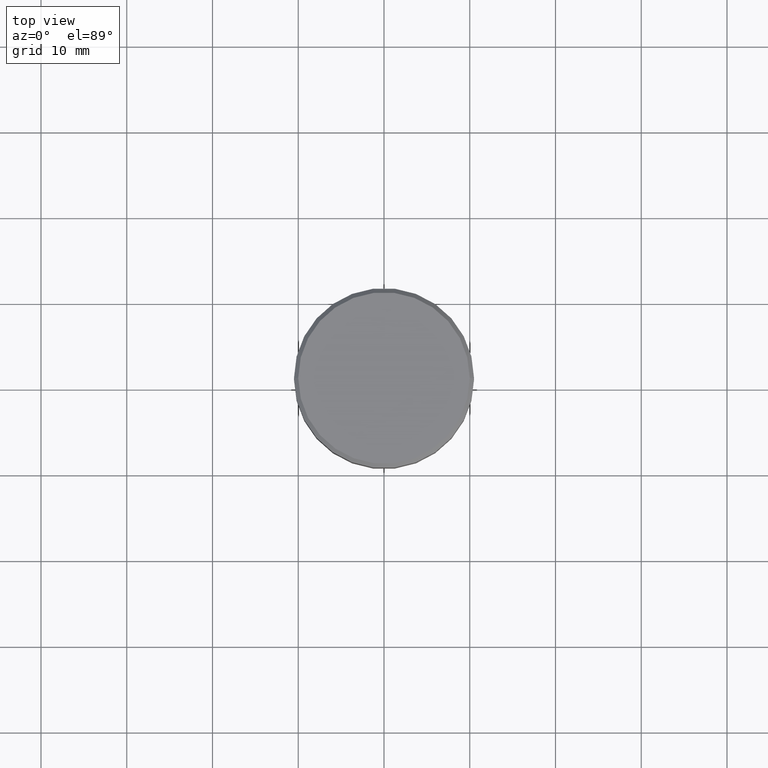
[diagram: clean part render]
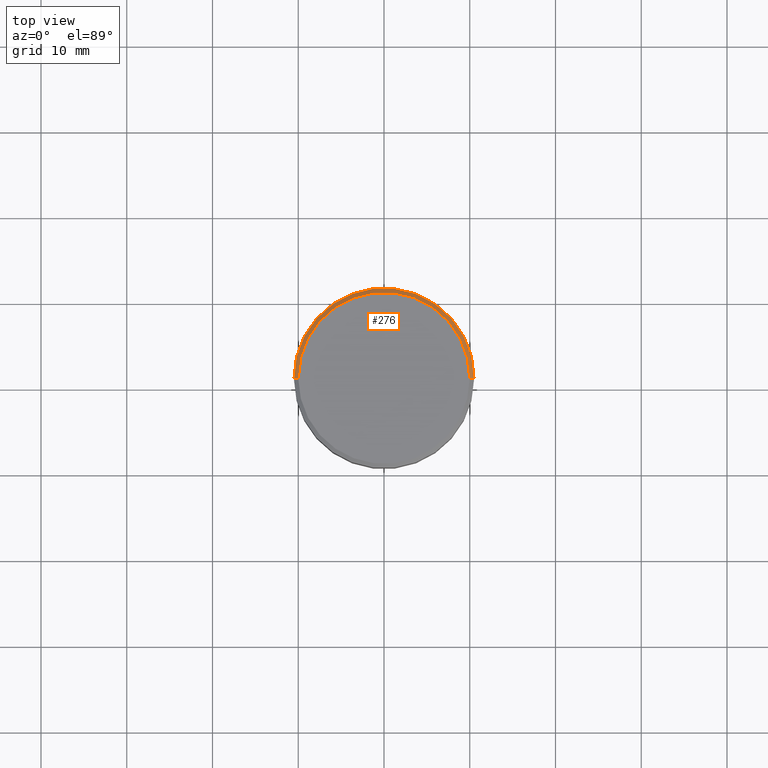
[diagram: same view with one face highlighted and labeled with its STEP entity id]
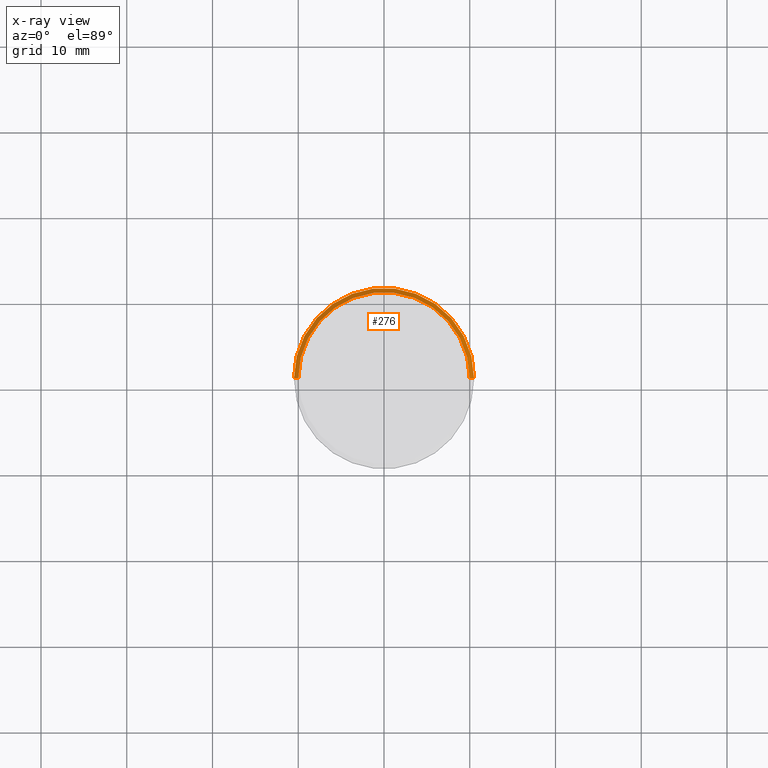
[diagram: x-ray of the same camera — body ghosted, the highlighted face saturated]
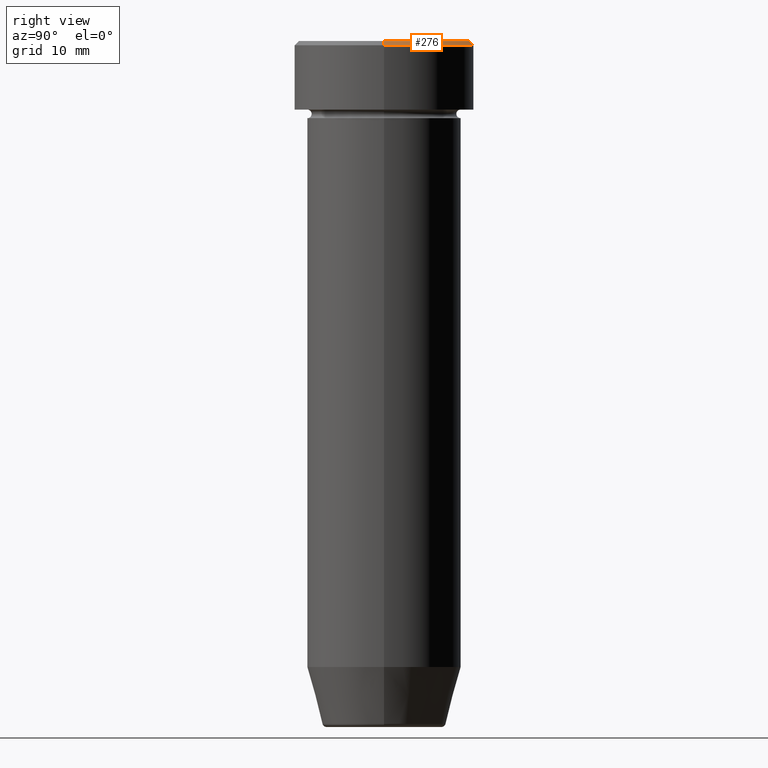
[diagram: same view with one face highlighted and labeled with its STEP entity id]
A machine part, top view. The second image highlights one B-rep face of the part: STEP entity #276.
The next image is the same camera in x-ray: the body ghosted, the highlighted face saturated — about 0% of this face is hidden behind the body in this view.
A second angle (right view) of the same face is appended — the face is thin or edge-on in the first view.
In plain terms, the highlighted conical surface has half-angle 45 deg.
Its self-contained STEP definition (entity closure, byte-faithful):
#11 = FACE_OUTER_BOUND ( 'NONE', #300, .T. ) ;
#14 = VECTOR ( 'NONE', #302, 1000.000000000000000 ) ;
#39 = DIRECTION ( 'NONE',  ( 0.7071067811865450192, 8.659560562354902043E-17, -0.7071067811865500152 ) ) ;
#44 = VERTEX_POINT ( 'NONE', #348 ) ;
#84 = DIRECTION ( 'NONE',  ( 1.000000000000000000, 0.000000000000000000, 0.000000000000000000 ) ) ;
#121 = DIRECTION ( 'NONE',  ( 0.000000000000000000, 0.000000000000000000, -1.000000000000000000 ) ) ;
#168 = EDGE_CURVE ( 'NONE', #373, #236, #509, .T. ) ;
#223 = ORIENTED_EDGE ( 'NONE', *, *, #527, .T. ) ;
#235 = DIRECTION ( 'NONE',  ( 0.000000000000000000, 0.000000000000000000, -1.000000000000000000 ) ) ;
#236 = VERTEX_POINT ( 'NONE', #241 ) ;
#241 = CARTESIAN_POINT ( 'NONE',  ( 10.50000000000000000, 0.000000000000000000, -0.5000000000000023315 ) ) ;
#242 = CARTESIAN_POINT ( 'NONE',  ( 0.000000000000000000, 0.000000000000000000, 0.000000000000000000 ) ) ;
#254 = DIRECTION ( 'NONE',  ( -1.000000000000000000, 0.000000000000000000, 0.000000000000000000 ) ) ;
#260 = CIRCLE ( 'NONE', #329, 10.00000000000000178 ) ;
#272 = LINE ( 'NONE', #461, #285 ) ;
#276 = ADVANCED_FACE ( 'NONE', ( #11 ), #320, .T. ) ;
#285 = VECTOR ( 'NONE', #39, 1000.000000000000000 ) ;
#300 = EDGE_LOOP ( 'NONE', ( #476, #223, #592, #434 ) ) ;
#301 = EDGE_CURVE ( 'NONE', #433, #373, #337, .T. ) ;
#302 = DIRECTION ( 'NONE',  ( -0.7071067811865450192, 0.000000000000000000, -0.7071067811865500152 ) ) ;
#320 = CONICAL_SURFACE ( 'NONE', #414, 10.00000000000000178, 0.7853981633974447263 ) ;
#322 = CARTESIAN_POINT ( 'NONE',  ( 0.000000000000000000, 0.000000000000000000, 0.000000000000000000 ) ) ;
#329 = AXIS2_PLACEMENT_3D ( 'NONE', #322, #365, #545 ) ;
#337 = LINE ( 'NONE', #488, #14 ) ;
#348 = CARTESIAN_POINT ( 'NONE',  ( 10.00000000000000178, 1.255262969126037241E-15, 0.000000000000000000 ) ) ;
#365 = DIRECTION ( 'NONE',  ( -0.000000000000000000, -0.000000000000000000, 1.000000000000000000 ) ) ;
#373 = VERTEX_POINT ( 'NONE', #521 ) ;
#414 = AXIS2_PLACEMENT_3D ( 'NONE', #242, #121, #254 ) ;
#418 = CARTESIAN_POINT ( 'NONE',  ( -10.00000000000000178, 0.000000000000000000, 0.000000000000000000 ) ) ;
#433 = VERTEX_POINT ( 'NONE', #418 ) ;
#434 = ORIENTED_EDGE ( 'NONE', *, *, #301, .F. ) ;
#461 = CARTESIAN_POINT ( 'NONE',  ( 10.00000000000000178, 1.224646799147353454E-15, 0.000000000000000000 ) ) ;
#476 = ORIENTED_EDGE ( 'NONE', *, *, #483, .F. ) ;
#483 = EDGE_CURVE ( 'NONE', #44, #433, #260, .T. ) ;
#488 = CARTESIAN_POINT ( 'NONE',  ( -10.00000000000000178, 0.000000000000000000, 0.000000000000000000 ) ) ;
#509 = CIRCLE ( 'NONE', #548, 10.50000000000000000 ) ;
#521 = CARTESIAN_POINT ( 'NONE',  ( -10.50000000000000000, 1.285879139104720831E-15, -0.5000000000000023315 ) ) ;
#527 = EDGE_CURVE ( 'NONE', #44, #236, #272, .T. ) ;
#545 = DIRECTION ( 'NONE',  ( 1.000000000000000000, 0.000000000000000000, 0.000000000000000000 ) ) ;
#546 = CARTESIAN_POINT ( 'NONE',  ( 0.000000000000000000, 0.000000000000000000, -0.5000000000000023315 ) ) ;
#548 = AXIS2_PLACEMENT_3D ( 'NONE', #546, #235, #84 ) ;
#592 = ORIENTED_EDGE ( 'NONE', *, *, #168, .F. ) ;